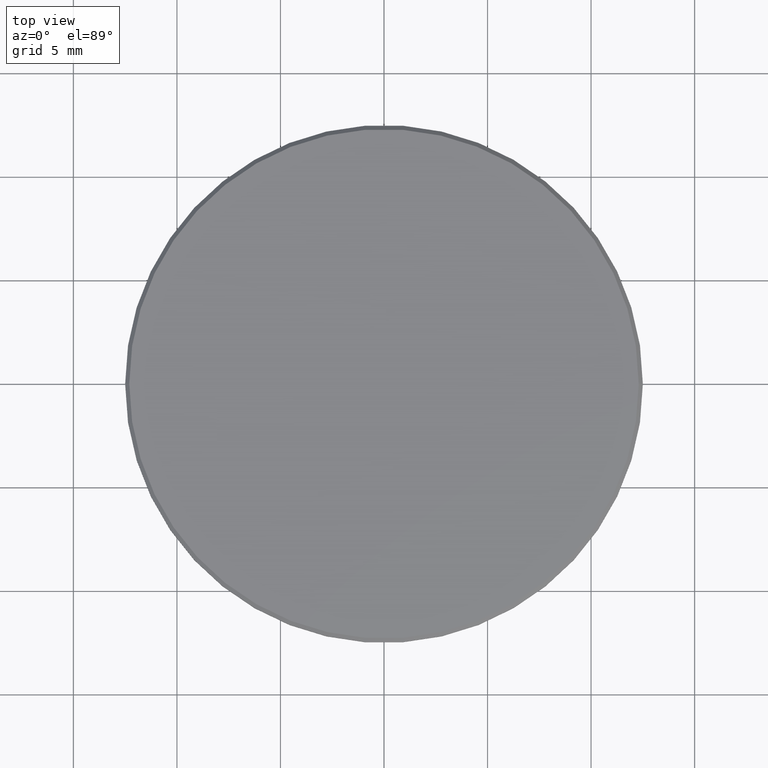
[diagram: clean part render]
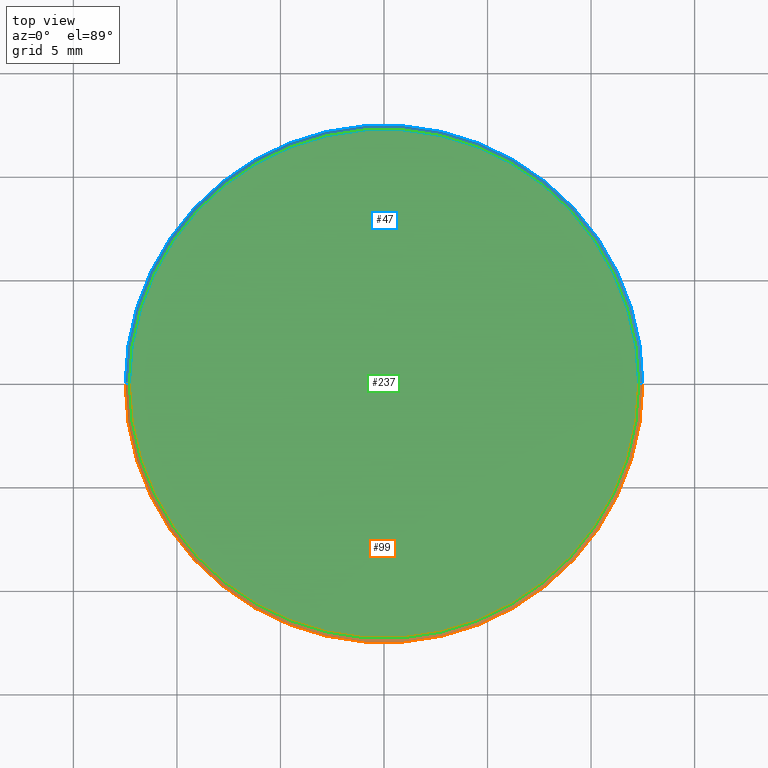
[diagram: same view with three faces highlighted in distinct colors, each labeled with its STEP entity id]
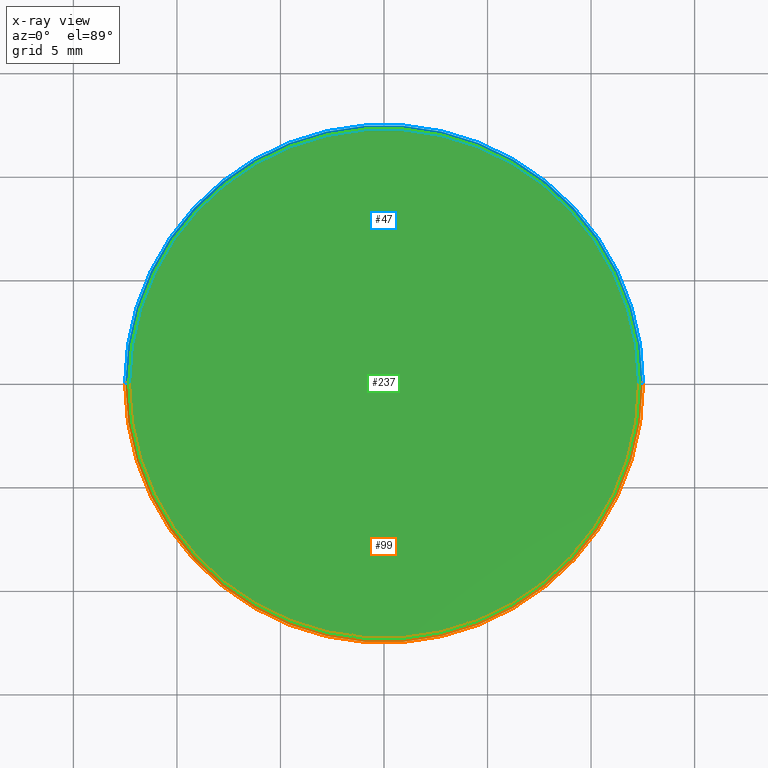
[diagram: x-ray of the same camera — body ghosted, the three highlighted faces saturated]
A machine part, top view with three faces highlighted in distinct colors.
The next image is the same camera in x-ray (body ghosted, the three faces saturated) — at least one of them is partly hidden behind the body in this view.
Their STEP definitions:

[orange] entity #99 — the highlighted conical surface has half-angle 45 deg.
#4 = AXIS2_PLACEMENT_3D ( 'NONE', #43, #168, #136 ) ;
#43 = CARTESIAN_POINT ( 'NONE',  ( 0.000000000000000000, 0.000000000000000000, 0.8000000000000029310 ) ) ;
#59 = CARTESIAN_POINT ( 'NONE',  ( -12.29999999999999893, 0.000000000000000000, 1.000000000000000000 ) ) ;
#63 = ORIENTED_EDGE ( 'NONE', *, *, #73, .F. ) ;
#67 = ORIENTED_EDGE ( 'NONE', *, *, #93, .F. ) ;
#73 = EDGE_CURVE ( 'NONE', #161, #173, #91, .T. ) ;
#78 = CARTESIAN_POINT ( 'NONE',  ( 12.50000000000000000, 1.530808498934191521E-15, 0.8000000000000029310 ) ) ;
#91 = LINE ( 'NONE', #222, #145 ) ;
#93 = EDGE_CURVE ( 'NONE', #195, #161, #206, .T. ) ;
#99 = ADVANCED_FACE ( 'NONE', ( #209 ), #127, .T. ) ;
#104 = CARTESIAN_POINT ( 'NONE',  ( -12.29999999999999893, 0.000000000000000000, 1.000000000000000000 ) ) ;
#117 = EDGE_CURVE ( 'NONE', #173, #228, #238, .T. ) ;
#118 = DIRECTION ( 'NONE',  ( 0.000000000000000000, 0.000000000000000000, -1.000000000000000000 ) ) ;
#127 = CONICAL_SURFACE ( 'NONE', #189, 12.29999999999999893, 0.7853981633974612686 ) ;
#129 = DIRECTION ( 'NONE',  ( 0.7071067811865566766, 8.659560562355045024E-17, -0.7071067811865383579 ) ) ;
#133 = CARTESIAN_POINT ( 'NONE',  ( -12.50000000000000000, 0.000000000000000000, 0.8000000000000029310 ) ) ;
#136 = DIRECTION ( 'NONE',  ( 1.000000000000000000, 0.000000000000000000, 0.000000000000000000 ) ) ;
#142 = CARTESIAN_POINT ( 'NONE',  ( 0.000000000000000000, 0.000000000000000000, 1.000000000000000000 ) ) ;
#145 = VECTOR ( 'NONE', #129, 1000.000000000000000 ) ;
#153 = CARTESIAN_POINT ( 'NONE',  ( 12.29999999999999893, 1.518562030942717967E-15, 1.000000000000000000 ) ) ;
#161 = VERTEX_POINT ( 'NONE', #153 ) ;
#168 = DIRECTION ( 'NONE',  ( 0.000000000000000000, 0.000000000000000000, -1.000000000000000000 ) ) ;
#173 = VERTEX_POINT ( 'NONE', #78 ) ;
#174 = DIRECTION ( 'NONE',  ( -1.000000000000000000, 0.000000000000000000, 0.000000000000000000 ) ) ;
#178 = EDGE_LOOP ( 'NONE', ( #63, #67, #211, #198 ) ) ;
#181 = EDGE_CURVE ( 'NONE', #195, #228, #194, .T. ) ;
#187 = DIRECTION ( 'NONE',  ( 1.000000000000000000, 0.000000000000000000, 0.000000000000000000 ) ) ;
#189 = AXIS2_PLACEMENT_3D ( 'NONE', #142, #118, #174 ) ;
#190 = DIRECTION ( 'NONE',  ( 0.000000000000000000, 0.000000000000000000, 1.000000000000000000 ) ) ;
#192 = VECTOR ( 'NONE', #210, 1000.000000000000000 ) ;
#194 = LINE ( 'NONE', #104, #192 ) ;
#195 = VERTEX_POINT ( 'NONE', #59 ) ;
#198 = ORIENTED_EDGE ( 'NONE', *, *, #117, .F. ) ;
#206 = CIRCLE ( 'NONE', #235, 12.29999999999999893 ) ;
#209 = FACE_OUTER_BOUND ( 'NONE', #178, .T. ) ;
#210 = DIRECTION ( 'NONE',  ( -0.7071067811865566766, 0.000000000000000000, -0.7071067811865383579 ) ) ;
#211 = ORIENTED_EDGE ( 'NONE', *, *, #181, .T. ) ;
#220 = CARTESIAN_POINT ( 'NONE',  ( 0.000000000000000000, 0.000000000000000000, 1.000000000000000000 ) ) ;
#222 = CARTESIAN_POINT ( 'NONE',  ( 12.29999999999999893, 1.506315562951244216E-15, 1.000000000000000000 ) ) ;
#228 = VERTEX_POINT ( 'NONE', #133 ) ;
#235 = AXIS2_PLACEMENT_3D ( 'NONE', #220, #190, #187 ) ;
#238 = CIRCLE ( 'NONE', #4, 12.50000000000000000 ) ;

[blue] entity #47 — the highlighted conical surface has half-angle 45 deg.
#18 = CIRCLE ( 'NONE', #163, 12.50000000000000000 ) ;
#21 = DIRECTION ( 'NONE',  ( 1.000000000000000000, 0.000000000000000000, 0.000000000000000000 ) ) ;
#44 = AXIS2_PLACEMENT_3D ( 'NONE', #102, #226, #61 ) ;
#47 = ADVANCED_FACE ( 'NONE', ( #218 ), #70, .T. ) ;
#59 = CARTESIAN_POINT ( 'NONE',  ( -12.29999999999999893, 0.000000000000000000, 1.000000000000000000 ) ) ;
#60 = ORIENTED_EDGE ( 'NONE', *, *, #181, .F. ) ;
#61 = DIRECTION ( 'NONE',  ( 1.000000000000000000, 0.000000000000000000, 0.000000000000000000 ) ) ;
#69 = CIRCLE ( 'NONE', #44, 12.29999999999999893 ) ;
#70 = CONICAL_SURFACE ( 'NONE', #76, 12.29999999999999893, 0.7853981633974612686 ) ;
#72 = CARTESIAN_POINT ( 'NONE',  ( 0.000000000000000000, 0.000000000000000000, 1.000000000000000000 ) ) ;
#73 = EDGE_CURVE ( 'NONE', #161, #173, #91, .T. ) ;
#76 = AXIS2_PLACEMENT_3D ( 'NONE', #72, #205, #239 ) ;
#78 = CARTESIAN_POINT ( 'NONE',  ( 12.50000000000000000, 1.530808498934191521E-15, 0.8000000000000029310 ) ) ;
#91 = LINE ( 'NONE', #222, #145 ) ;
#98 = DIRECTION ( 'NONE',  ( 0.000000000000000000, 0.000000000000000000, -1.000000000000000000 ) ) ;
#102 = CARTESIAN_POINT ( 'NONE',  ( 0.000000000000000000, 0.000000000000000000, 1.000000000000000000 ) ) ;
#104 = CARTESIAN_POINT ( 'NONE',  ( -12.29999999999999893, 0.000000000000000000, 1.000000000000000000 ) ) ;
#124 = CARTESIAN_POINT ( 'NONE',  ( 0.000000000000000000, 0.000000000000000000, 0.8000000000000029310 ) ) ;
#129 = DIRECTION ( 'NONE',  ( 0.7071067811865566766, 8.659560562355045024E-17, -0.7071067811865383579 ) ) ;
#133 = CARTESIAN_POINT ( 'NONE',  ( -12.50000000000000000, 0.000000000000000000, 0.8000000000000029310 ) ) ;
#134 = EDGE_CURVE ( 'NONE', #161, #195, #69, .T. ) ;
#145 = VECTOR ( 'NONE', #129, 1000.000000000000000 ) ;
#153 = CARTESIAN_POINT ( 'NONE',  ( 12.29999999999999893, 1.518562030942717967E-15, 1.000000000000000000 ) ) ;
#156 = ORIENTED_EDGE ( 'NONE', *, *, #73, .T. ) ;
#159 = EDGE_LOOP ( 'NONE', ( #232, #156, #162, #60 ) ) ;
#161 = VERTEX_POINT ( 'NONE', #153 ) ;
#162 = ORIENTED_EDGE ( 'NONE', *, *, #167, .F. ) ;
#163 = AXIS2_PLACEMENT_3D ( 'NONE', #124, #98, #21 ) ;
#167 = EDGE_CURVE ( 'NONE', #228, #173, #18, .T. ) ;
#173 = VERTEX_POINT ( 'NONE', #78 ) ;
#181 = EDGE_CURVE ( 'NONE', #195, #228, #194, .T. ) ;
#192 = VECTOR ( 'NONE', #210, 1000.000000000000000 ) ;
#194 = LINE ( 'NONE', #104, #192 ) ;
#195 = VERTEX_POINT ( 'NONE', #59 ) ;
#205 = DIRECTION ( 'NONE',  ( 0.000000000000000000, 0.000000000000000000, -1.000000000000000000 ) ) ;
#210 = DIRECTION ( 'NONE',  ( -0.7071067811865566766, 0.000000000000000000, -0.7071067811865383579 ) ) ;
#218 = FACE_OUTER_BOUND ( 'NONE', #159, .T. ) ;
#222 = CARTESIAN_POINT ( 'NONE',  ( 12.29999999999999893, 1.506315562951244216E-15, 1.000000000000000000 ) ) ;
#226 = DIRECTION ( 'NONE',  ( 0.000000000000000000, 0.000000000000000000, 1.000000000000000000 ) ) ;
#228 = VERTEX_POINT ( 'NONE', #133 ) ;
#232 = ORIENTED_EDGE ( 'NONE', *, *, #134, .F. ) ;
#239 = DIRECTION ( 'NONE',  ( -1.000000000000000000, 0.000000000000000000, 0.000000000000000000 ) ) ;

[green] entity #237 — the highlighted planar face has unit normal (0, 0, 1).
#3 = PLANE ( 'NONE',  #231 ) ;
#24 = ORIENTED_EDGE ( 'NONE', *, *, #134, .T. ) ;
#39 = DIRECTION ( 'NONE',  ( 1.000000000000000000, 0.000000000000000000, -0.000000000000000000 ) ) ;
#44 = AXIS2_PLACEMENT_3D ( 'NONE', #102, #226, #61 ) ;
#48 = ORIENTED_EDGE ( 'NONE', *, *, #93, .T. ) ;
#59 = CARTESIAN_POINT ( 'NONE',  ( -12.29999999999999893, 0.000000000000000000, 1.000000000000000000 ) ) ;
#61 = DIRECTION ( 'NONE',  ( 1.000000000000000000, 0.000000000000000000, 0.000000000000000000 ) ) ;
#69 = CIRCLE ( 'NONE', #44, 12.29999999999999893 ) ;
#93 = EDGE_CURVE ( 'NONE', #195, #161, #206, .T. ) ;
#102 = CARTESIAN_POINT ( 'NONE',  ( 0.000000000000000000, 0.000000000000000000, 1.000000000000000000 ) ) ;
#119 = CARTESIAN_POINT ( 'NONE',  ( 0.000000000000000000, 0.000000000000000000, 1.000000000000000000 ) ) ;
#134 = EDGE_CURVE ( 'NONE', #161, #195, #69, .T. ) ;
#153 = CARTESIAN_POINT ( 'NONE',  ( 12.29999999999999893, 1.518562030942717967E-15, 1.000000000000000000 ) ) ;
#161 = VERTEX_POINT ( 'NONE', #153 ) ;
#187 = DIRECTION ( 'NONE',  ( 1.000000000000000000, 0.000000000000000000, 0.000000000000000000 ) ) ;
#190 = DIRECTION ( 'NONE',  ( 0.000000000000000000, 0.000000000000000000, 1.000000000000000000 ) ) ;
#195 = VERTEX_POINT ( 'NONE', #59 ) ;
#206 = CIRCLE ( 'NONE', #235, 12.29999999999999893 ) ;
#208 = DIRECTION ( 'NONE',  ( 0.000000000000000000, 0.000000000000000000, 1.000000000000000000 ) ) ;
#213 = EDGE_LOOP ( 'NONE', ( #48, #24 ) ) ;
#220 = CARTESIAN_POINT ( 'NONE',  ( 0.000000000000000000, 0.000000000000000000, 1.000000000000000000 ) ) ;
#226 = DIRECTION ( 'NONE',  ( 0.000000000000000000, 0.000000000000000000, 1.000000000000000000 ) ) ;
#227 = FACE_OUTER_BOUND ( 'NONE', #213, .T. ) ;
#231 = AXIS2_PLACEMENT_3D ( 'NONE', #119, #208, #39 ) ;
#235 = AXIS2_PLACEMENT_3D ( 'NONE', #220, #190, #187 ) ;
#237 = ADVANCED_FACE ( 'NONE', ( #227 ), #3, .T. ) ;